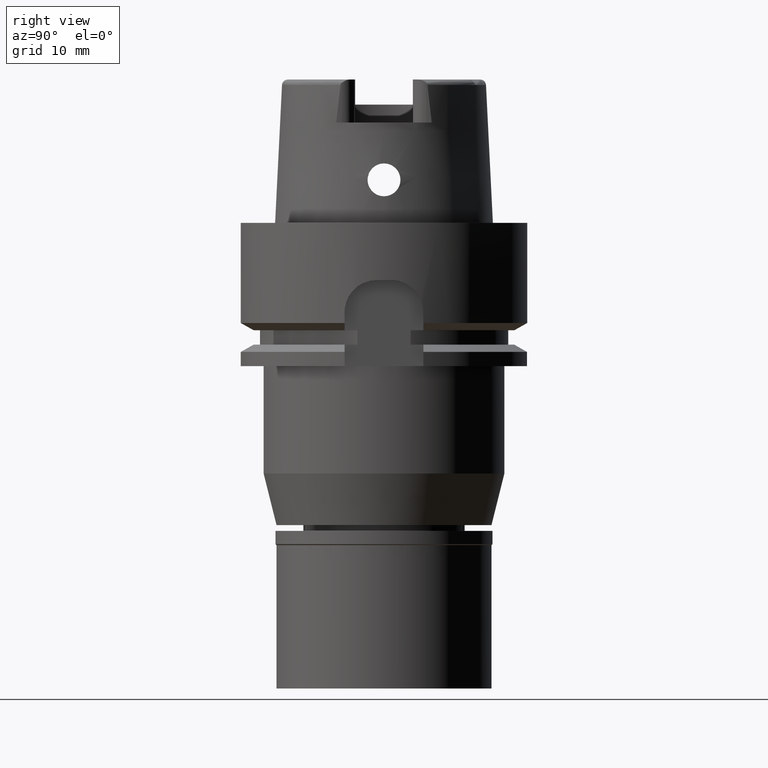
[diagram: clean part render]
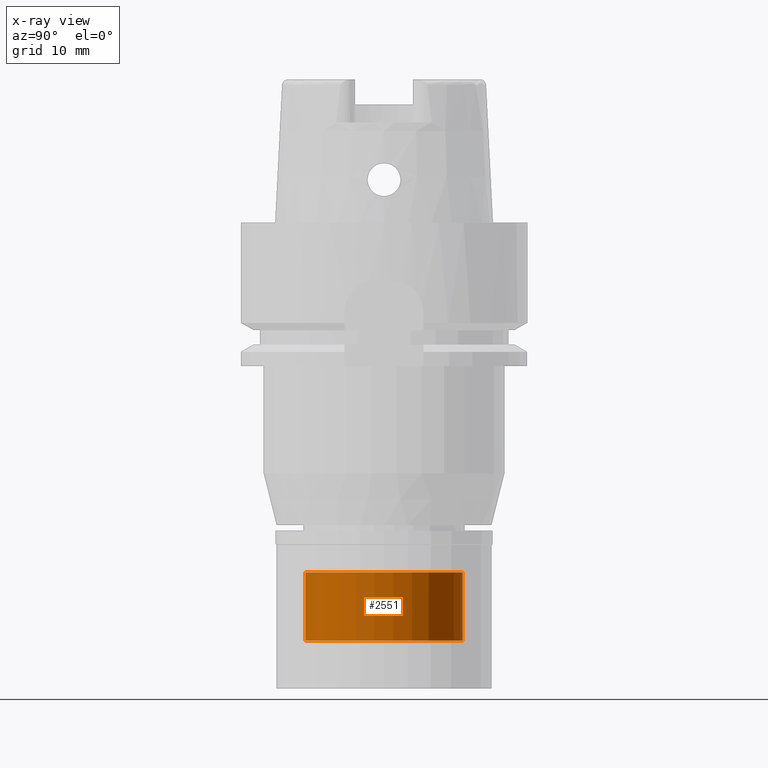
[diagram: x-ray — body ghosted, one internal face saturated and labeled with its STEP entity id]
A machine part, right view, then the same camera in x-ray: the body is ghosted and one INTERNAL B-rep face — a face not visible from any outside direction — is saturated and labeled: STEP entity #2551.
In plain terms, the highlighted cylindrical surface (partial cylindrical patch) has radius 11 mm, axis along (0, 0, 1).
Its self-contained STEP definition (entity closure, byte-faithful):
#35 = EDGE_CURVE ( 'NONE', #5060, #4204, #2158, .T. ) ;
#148 = DIRECTION ( 'NONE',  ( 0.0000000000000000000, 0.0000000000000000000, 1.000000000000000000 ) ) ;
#403 = EDGE_CURVE ( 'NONE', #4918, #4204, #1061, .T. ) ;
#405 = ORIENTED_EDGE ( 'NONE', *, *, #403, .T. ) ;
#502 = CYLINDRICAL_SURFACE ( 'NONE', #3585, 11.00000000000000000 ) ;
#585 = CARTESIAN_POINT ( 'NONE',  ( 0.0000000000000000000, 0.0000000000000000000, -62.21499999999999631 ) ) ;
#878 = DIRECTION ( 'NONE',  ( 0.0000000000000000000, 0.0000000000000000000, -1.000000000000000000 ) ) ;
#899 = EDGE_LOOP ( 'NONE', ( #4723, #1433, #405, #4033 ) ) ;
#947 = DIRECTION ( 'NONE',  ( 0.0000000000000000000, 1.000000000000000000, 0.0000000000000000000 ) ) ;
#1061 = CIRCLE ( 'NONE', #3786, 11.00000000000000000 ) ;
#1354 = CARTESIAN_POINT ( 'NONE',  ( 0.0000000000000000000, 11.00000000000000000, -58.29999999999999716 ) ) ;
#1433 = ORIENTED_EDGE ( 'NONE', *, *, #2881, .T. ) ;
#1658 = DIRECTION ( 'NONE',  ( 0.0000000000000000000, 0.0000000000000000000, -1.000000000000000000 ) ) ;
#1824 = CARTESIAN_POINT ( 'NONE',  ( 0.0000000000000000000, 0.0000000000000000000, -58.29999999999999716 ) ) ;
#1887 = EDGE_CURVE ( 'NONE', #5060, #2125, #2014, .T. ) ;
#2014 = CIRCLE ( 'NONE', #3135, 11.00000000000000000 ) ;
#2125 = VERTEX_POINT ( 'NONE', #2695 ) ;
#2158 = LINE ( 'NONE', #5417, #2806 ) ;
#2205 = DIRECTION ( 'NONE',  ( 0.0000000000000000000, 0.0000000000000000000, 1.000000000000000000 ) ) ;
#2551 = ADVANCED_FACE ( 'NONE', ( #3548 ), #502, .T. ) ;
#2621 = VECTOR ( 'NONE', #878, 1000.000000000000000 ) ;
#2695 = CARTESIAN_POINT ( 'NONE',  ( 0.0000000000000000000, -11.00000000000000000, -48.80000000000000426 ) ) ;
#2806 = VECTOR ( 'NONE', #1658, 1000.000000000000000 ) ;
#2881 = EDGE_CURVE ( 'NONE', #2125, #4918, #3378, .T. ) ;
#3045 = DIRECTION ( 'NONE',  ( 0.0000000000000000000, 1.000000000000000000, 0.0000000000000000000 ) ) ;
#3135 = AXIS2_PLACEMENT_3D ( 'NONE', #3867, #5138, #947 ) ;
#3378 = LINE ( 'NONE', #3818, #2621 ) ;
#3548 = FACE_OUTER_BOUND ( 'NONE', #899, .T. ) ;
#3585 = AXIS2_PLACEMENT_3D ( 'NONE', #585, #148, #3045 ) ;
#3786 = AXIS2_PLACEMENT_3D ( 'NONE', #1824, #2205, #3925 ) ;
#3818 = CARTESIAN_POINT ( 'NONE',  ( 0.0000000000000000000, -11.00000000000000000, -48.80000000000000426 ) ) ;
#3867 = CARTESIAN_POINT ( 'NONE',  ( 0.0000000000000000000, 0.0000000000000000000, -48.80000000000000426 ) ) ;
#3925 = DIRECTION ( 'NONE',  ( 0.0000000000000000000, -1.000000000000000000, 0.0000000000000000000 ) ) ;
#4033 = ORIENTED_EDGE ( 'NONE', *, *, #35, .F. ) ;
#4204 = VERTEX_POINT ( 'NONE', #1354 ) ;
#4507 = CARTESIAN_POINT ( 'NONE',  ( 0.0000000000000000000, -11.00000000000000000, -58.29999999999999716 ) ) ;
#4723 = ORIENTED_EDGE ( 'NONE', *, *, #1887, .T. ) ;
#4918 = VERTEX_POINT ( 'NONE', #4507 ) ;
#5060 = VERTEX_POINT ( 'NONE', #5115 ) ;
#5115 = CARTESIAN_POINT ( 'NONE',  ( 0.0000000000000000000, 11.00000000000000000, -48.80000000000000426 ) ) ;
#5138 = DIRECTION ( 'NONE',  ( 0.0000000000000000000, 0.0000000000000000000, -1.000000000000000000 ) ) ;
#5417 = CARTESIAN_POINT ( 'NONE',  ( 0.0000000000000000000, 11.00000000000000000, -48.80000000000000426 ) ) ;